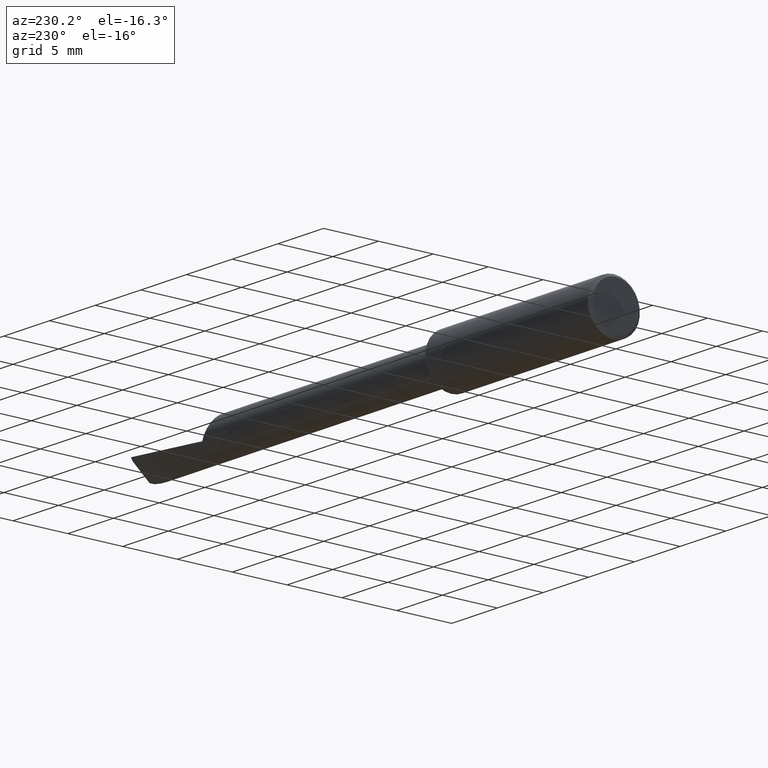
[diagram: clean part render]
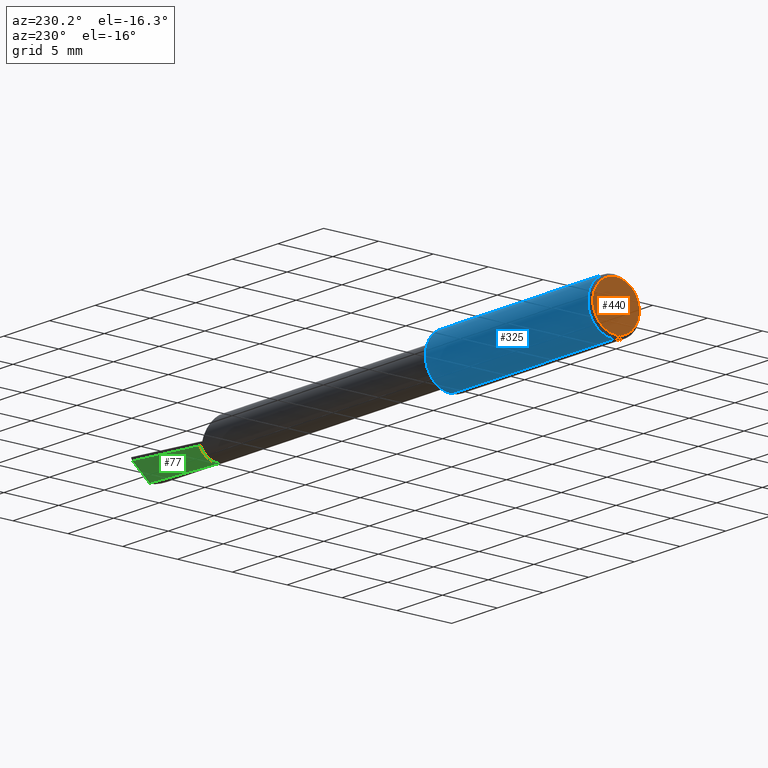
[diagram: same view with three faces highlighted in distinct colors, each labeled with its STEP entity id]
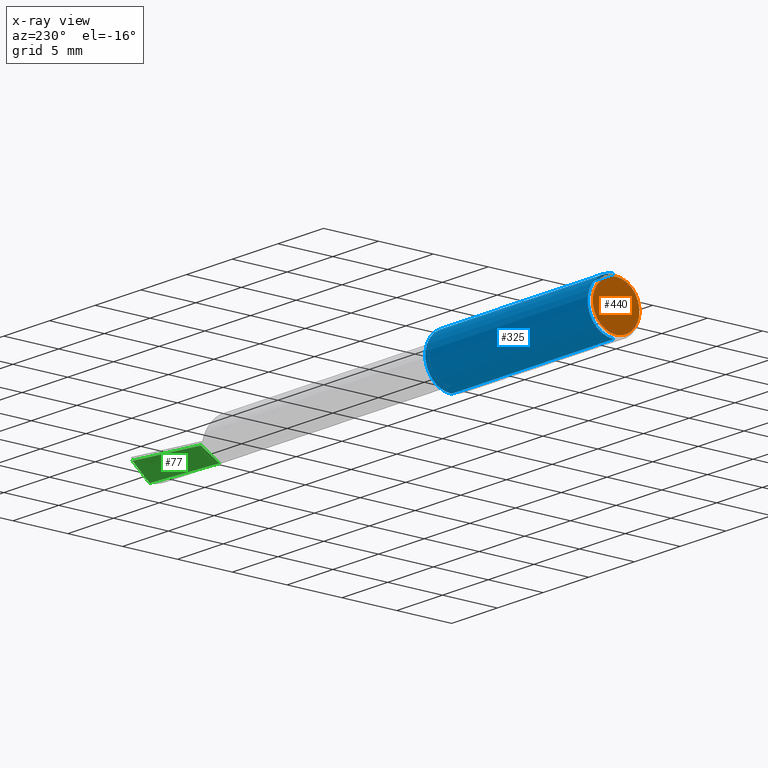
[diagram: x-ray of the same camera — body ghosted, the three highlighted faces saturated]
A machine part, auxiliary view with three faces highlighted in distinct colors.
The next image is the same camera in x-ray (body ghosted, the three faces saturated) — at least one of them is partly hidden behind the body in this view.
Their STEP definitions:

[orange] entity #440 — the highlighted planar face has unit normal (1, 0, 0).
#90 = FACE_OUTER_BOUND ( 'NONE', #662, .T. ) ;
#94 = CIRCLE ( 'NONE', #710, 0.08359999999999997988 ) ;
#95 = DIRECTION ( 'NONE',  ( 0.000000000000000000, 0.000000000000000000, 1.000000000000000000 ) ) ;
#99 = DIRECTION ( 'NONE',  ( 1.000000000000000000, 0.000000000000000000, 0.000000000000000000 ) ) ;
#140 = DIRECTION ( 'NONE',  ( 0.000000000000000000, 0.000000000000000000, 1.000000000000000000 ) ) ;
#159 = CARTESIAN_POINT ( 'NONE',  ( 0.000000000000000000, 1.085037064044554943E-17, 0.08359999999999997988 ) ) ;
#219 = DIRECTION ( 'NONE',  ( -1.000000000000000000, -0.000000000000000000, -0.000000000000000000 ) ) ;
#253 = ORIENTED_EDGE ( 'NONE', *, *, #383, .T. ) ;
#262 = PLANE ( 'NONE',  #480 ) ;
#296 = AXIS2_PLACEMENT_3D ( 'NONE', #513, #219, #95 ) ;
#379 = ORIENTED_EDGE ( 'NONE', *, *, #458, .T. ) ;
#383 = EDGE_CURVE ( 'NONE', #449, #437, #94, .T. ) ;
#413 = CIRCLE ( 'NONE', #296, 0.08359999999999997988 ) ;
#437 = VERTEX_POINT ( 'NONE', #451 ) ;
#440 = ADVANCED_FACE ( 'NONE', ( #90 ), #262, .F. ) ;
#449 = VERTEX_POINT ( 'NONE', #159 ) ;
#451 = CARTESIAN_POINT ( 'NONE',  ( 0.000000000000000000, 0.000000000000000000, -0.08359999999999997988 ) ) ;
#458 = EDGE_CURVE ( 'NONE', #437, #449, #413, .T. ) ;
#480 = AXIS2_PLACEMENT_3D ( 'NONE', #741, #99, #682 ) ;
#492 = CARTESIAN_POINT ( 'NONE',  ( 0.000000000000000000, 0.000000000000000000, 0.000000000000000000 ) ) ;
#513 = CARTESIAN_POINT ( 'NONE',  ( 0.000000000000000000, 0.000000000000000000, 0.000000000000000000 ) ) ;
#662 = EDGE_LOOP ( 'NONE', ( #379, #253 ) ) ;
#682 = DIRECTION ( 'NONE',  ( 0.000000000000000000, 0.000000000000000000, -1.000000000000000000 ) ) ;
#710 = AXIS2_PLACEMENT_3D ( 'NONE', #492, #723, #140 ) ;
#723 = DIRECTION ( 'NONE',  ( -1.000000000000000000, -0.000000000000000000, -0.000000000000000000 ) ) ;
#741 = CARTESIAN_POINT ( 'NONE',  ( 0.000000000000000000, 0.000000000000000000, 0.000000000000000000 ) ) ;

[blue] entity #325 — the highlighted cylindrical surface (edge-blend (fillet) strip) has radius 2.3774 mm, axis along (-1, -0, -0).
#7 = EDGE_CURVE ( 'NONE', #397, #79, #46, .T. ) ;
#16 = CYLINDRICAL_SURFACE ( 'NONE', #236, 0.09360000000000001652 ) ;
#46 = CIRCLE ( 'NONE', #417, 0.09360000000000001652 ) ;
#79 = VERTEX_POINT ( 'NONE', #754 ) ;
#83 = CARTESIAN_POINT ( 'NONE',  ( 0.009999999999999995004, 0.000000000000000000, 0.09360000000000001652 ) ) ;
#85 = EDGE_CURVE ( 'NONE', #397, #399, #244, .T. ) ;
#116 = CARTESIAN_POINT ( 'NONE',  ( 0.000000000000000000, 1.146269404001922775E-17, -0.09360000000000001652 ) ) ;
#135 = DIRECTION ( 'NONE',  ( -1.000000000000000000, -0.000000000000000000, -0.000000000000000000 ) ) ;
#199 = DIRECTION ( 'NONE',  ( -1.000000000000000000, -0.000000000000000000, -0.000000000000000000 ) ) ;
#236 = AXIS2_PLACEMENT_3D ( 'NONE', #663, #199, #436 ) ;
#244 = LINE ( 'NONE', #116, #281 ) ;
#267 = CARTESIAN_POINT ( 'NONE',  ( 0.009999999999999995004, 1.146269404001922775E-17, -0.09360000000000001652 ) ) ;
#271 = DIRECTION ( 'NONE',  ( -1.000000000000000000, -0.000000000000000000, -0.000000000000000000 ) ) ;
#280 = VECTOR ( 'NONE', #271, 39.37007874015748143 ) ;
#281 = VECTOR ( 'NONE', #645, 39.37007874015748143 ) ;
#302 = DIRECTION ( 'NONE',  ( 0.000000000000000000, 0.000000000000000000, -1.000000000000000000 ) ) ;
#305 = DIRECTION ( 'NONE',  ( 1.000000000000000000, 0.000000000000000000, 0.000000000000000000 ) ) ;
#311 = CARTESIAN_POINT ( 'NONE',  ( 0.000000000000000000, 0.000000000000000000, 0.09360000000000001652 ) ) ;
#314 = ORIENTED_EDGE ( 'NONE', *, *, #7, .F. ) ;
#325 = ADVANCED_FACE ( 'NONE', ( #370 ), #16, .T. ) ;
#344 = EDGE_CURVE ( 'NONE', #348, #399, #568, .T. ) ;
#348 = VERTEX_POINT ( 'NONE', #83 ) ;
#370 = FACE_OUTER_BOUND ( 'NONE', #664, .T. ) ;
#375 = ORIENTED_EDGE ( 'NONE', *, *, #344, .F. ) ;
#384 = ORIENTED_EDGE ( 'NONE', *, *, #667, .F. ) ;
#387 = AXIS2_PLACEMENT_3D ( 'NONE', #661, #135, #604 ) ;
#397 = VERTEX_POINT ( 'NONE', #569 ) ;
#399 = VERTEX_POINT ( 'NONE', #267 ) ;
#417 = AXIS2_PLACEMENT_3D ( 'NONE', #536, #305, #302 ) ;
#436 = DIRECTION ( 'NONE',  ( 0.000000000000000000, 0.000000000000000000, 1.000000000000000000 ) ) ;
#457 = ORIENTED_EDGE ( 'NONE', *, *, #85, .T. ) ;
#536 = CARTESIAN_POINT ( 'NONE',  ( 0.7100000000000000755, 0.000000000000000000, 0.000000000000000000 ) ) ;
#568 = CIRCLE ( 'NONE', #387, 0.09360000000000001652 ) ;
#569 = CARTESIAN_POINT ( 'NONE',  ( 0.7100000000000000755, 1.146269404001922775E-17, -0.09360000000000001652 ) ) ;
#604 = DIRECTION ( 'NONE',  ( 0.000000000000000000, 0.000000000000000000, 1.000000000000000000 ) ) ;
#645 = DIRECTION ( 'NONE',  ( -1.000000000000000000, -0.000000000000000000, -0.000000000000000000 ) ) ;
#661 = CARTESIAN_POINT ( 'NONE',  ( 0.009999999999999995004, 0.000000000000000000, 0.000000000000000000 ) ) ;
#663 = CARTESIAN_POINT ( 'NONE',  ( 0.000000000000000000, 0.000000000000000000, 0.000000000000000000 ) ) ;
#664 = EDGE_LOOP ( 'NONE', ( #314, #457, #375, #384 ) ) ;
#667 = EDGE_CURVE ( 'NONE', #79, #348, #733, .T. ) ;
#733 = LINE ( 'NONE', #311, #280 ) ;
#754 = CARTESIAN_POINT ( 'NONE',  ( 0.7100000000000000755, 0.000000000000000000, 0.09360000000000001652 ) ) ;

[green] entity #77 — the highlighted face is a freeform B-spline surface patch.
#23 = EDGE_LOOP ( 'NONE', ( #558, #277, #607, #579, #366 ) ) ;
#24 = CARTESIAN_POINT ( 'NONE',  ( 1.751194580466905792, -0.006177430924799603464, -0.06477662660053580546 ) ) ;
#27 = LINE ( 'NONE', #32, #697 ) ;
#30 = CARTESIAN_POINT ( 'NONE',  ( 1.813570384251951273, 8.003460918938271148E-19, -0.06500000000000000222 ) ) ;
#32 = CARTESIAN_POINT ( 'NONE',  ( 1.719999999999999973, 0.05758081542404219766, -0.02571398672436505869 ) ) ;
#41 = DIRECTION ( 'NONE',  ( 0.000000000000000000, -0.8655013302530163433, -0.5009066253607143970 ) ) ;
#48 = CARTESIAN_POINT ( 'NONE',  ( 1.991497697226062513, 0.01554903691920557843, -0.06500000000000000222 ) ) ;
#54 = VERTEX_POINT ( 'NONE', #411 ) ;
#64 = CARTESIAN_POINT ( 'NONE',  ( 1.719999999999999973, -0.06922596991571894343, -0.09910308122617432491 ) ) ;
#68 = B_SPLINE_CURVE_WITH_KNOTS ( 'NONE', 3,
 ( #381, #598, #660, #429 ),
 .UNSPECIFIED., .F., .F.,
 ( 4, 4 ),
 ( 0.000000000000000000, 0.004536655167221706648 ),
 .UNSPECIFIED. ) ;
#77 = ADVANCED_FACE ( 'NONE', ( #587 ), #673, .T. ) ;
#119 = CARTESIAN_POINT ( 'NONE',  ( 1.906666396777477956, 0.06735851617723603857, -0.01618938292801345991 ) ) ;
#124 = CARTESIAN_POINT ( 'NONE',  ( 2.000000000000000000, -0.03239026225835030942, -0.1135999999999999788 ) ) ;
#160 = VERTEX_POINT ( 'NONE', #467 ) ;
#174 = CARTESIAN_POINT ( 'NONE',  ( 1.993876612660086645, 0.03402300587759423539, -0.04693900690774778506 ) ) ;
#178 = CARTESIAN_POINT ( 'NONE',  ( 1.998726022799542035, 0.07115711936974120078, -0.01008442737369629957 ) ) ;
#179 = CARTESIAN_POINT ( 'NONE',  ( 1.906666187157394221, -0.04524618104179124745, -0.1107847082594578814 ) ) ;
#181 = CARTESIAN_POINT ( 'NONE',  ( 2.000000000000000000, 0.07120973774164850167, -0.01000000000000000021 ) ) ;
#201 = B_SPLINE_CURVE_WITH_KNOTS ( 'NONE', 3,
 ( #657, #24, #363, #30 ),
 .UNSPECIFIED., .F., .F.,
 ( 4, 4 ),
 ( 0.000000000000000000, 0.002388144790512181353 ),
 .UNSPECIFIED. ) ;
#212 = VERTEX_POINT ( 'NONE', #365 ) ;
#277 = ORIENTED_EDGE ( 'NONE', *, *, #693, .F. ) ;
#292 = CARTESIAN_POINT ( 'NONE',  ( 1.995071253894708185, 0.04321459812773233156, -0.03786306949272103678 ) ) ;
#317 = EDGE_CURVE ( 'NONE', #511, #54, #498, .T. ) ;
#337 = CARTESIAN_POINT ( 'NONE',  ( 1.998726022799542035, 0.07115711936974120078, -0.01008442737369629957 ) ) ;
#351 = CARTESIAN_POINT ( 'NONE',  ( 1.996285930696583222, 0.05256034441119986078, -0.02863491771475288120 ) ) ;
#360 = CARTESIAN_POINT ( 'NONE',  ( 1.813333907673392531, -0.05773088465805257391, -0.1058888551097066227 ) ) ;
#363 = CARTESIAN_POINT ( 'NONE',  ( 1.782384157267214331, -0.003113718387558165809, -0.06500000000000005773 ) ) ;
#365 = CARTESIAN_POINT ( 'NONE',  ( 1.991497697226062513, 0.01554903691920557843, -0.06500000000000000222 ) ) ;
#366 = ORIENTED_EDGE ( 'NONE', *, *, #317, .F. ) ;
#381 = CARTESIAN_POINT ( 'NONE',  ( 1.813570384251951273, 8.003460918938271148E-19, -0.06500000000000000222 ) ) ;
#411 = CARTESIAN_POINT ( 'NONE',  ( 1.719999999999999973, 0.05758081542404219766, -0.02571398672436505869 ) ) ;
#415 = CARTESIAN_POINT ( 'NONE',  ( 1.719999999999999973, 0.05758081542404219766, -0.02571398672436505869 ) ) ;
#429 = CARTESIAN_POINT ( 'NONE',  ( 1.991497697226062513, 0.01554903691920557843, -0.06500000000000000222 ) ) ;
#467 = CARTESIAN_POINT ( 'NONE',  ( 1.813570384251951273, 8.003460918938271148E-19, -0.06500000000000000222 ) ) ;
#496 = CARTESIAN_POINT ( 'NONE',  ( 1.812908770613867127, 0.06267376777089761486, -0.02149727218159509443 ) ) ;
#498 = B_SPLINE_CURVE_WITH_KNOTS ( 'NONE', 3,
 ( #550, #719, #496, #721 ),
 .UNSPECIFIED., .F., .F.,
 ( 4, 4 ),
 ( 0.004549905558638261439, 1.000000000000000000 ),
 .UNSPECIFIED. ) ;
#511 = VERTEX_POINT ( 'NONE', #337 ) ;
#522 = EDGE_CURVE ( 'NONE', #54, #583, #27, .T. ) ;
#550 = CARTESIAN_POINT ( 'NONE',  ( 1.998726022799542035, 0.07115711936974120078, -0.01008442737369629957 ) ) ;
#558 = ORIENTED_EDGE ( 'NONE', *, *, #594, .F. ) ;
#579 = ORIENTED_EDGE ( 'NONE', *, *, #522, .F. ) ;
#583 = VERTEX_POINT ( 'NONE', #703 ) ;
#586 = CARTESIAN_POINT ( 'NONE',  ( 1.997504190627929166, 0.06187471731385378593, -0.01937535503357968106 ) ) ;
#587 = FACE_OUTER_BOUND ( 'NONE', #23, .T. ) ;
#594 = EDGE_CURVE ( 'NONE', #212, #511, #615, .T. ) ;
#598 = CARTESIAN_POINT ( 'NONE',  ( 1.872813036531169262, 0.005914948795177814821, -0.06500000000000000222 ) ) ;
#607 = ORIENTED_EDGE ( 'NONE', *, *, #725, .F. ) ;
#615 = B_SPLINE_CURVE_WITH_KNOTS ( 'NONE', 3,
 ( #48, #747, #174, #292, #351, #586, #178 ),
 .UNSPECIFIED., .F., .F.,
 ( 4, 3, 4 ),
 ( 1.653267529927235623E-05, 0.001005035468824684412, 0.002010116709445343777 ),
 .UNSPECIFIED. ) ;
#657 = CARTESIAN_POINT ( 'NONE',  ( 1.719999999999999973, -0.009175636126352458913, -0.06434910800995440050 ) ) ;
#660 = CARTESIAN_POINT ( 'NONE',  ( 1.932141672084894068, 0.01091722336907574066, -0.06500000000000000222 ) ) ;
#673 = B_SPLINE_SURFACE_WITH_KNOTS ( 'NONE', 1, 3, ( 
 ( #181, #119, #700, #415 ),
 ( #124, #179, #360, #64 ) ),
 .UNSPECIFIED., .F., .F., .F.,
 ( 2, 2 ),
 ( 4, 4 ),
 ( 0.000000000000000000, 1.000000000000000000 ),
 ( 0.000000000000000000, 1.000000000000000000 ),
 .UNSPECIFIED. ) ;
#693 = EDGE_CURVE ( 'NONE', #160, #212, #68, .T. ) ;
#697 = VECTOR ( 'NONE', #41, 39.37007874015748143 ) ;
#700 = CARTESIAN_POINT ( 'NONE',  ( 1.813333428900828048, 0.06269704613745978594, -0.02147799883677435281 ) ) ;
#703 = CARTESIAN_POINT ( 'NONE',  ( 1.719999999999999973, -0.009175636126352458913, -0.06434910800995440050 ) ) ;
#719 = CARTESIAN_POINT ( 'NONE',  ( 1.905817084389240135, 0.06731608826605313400, -0.01623748654272803155 ) ) ;
#721 = CARTESIAN_POINT ( 'NONE',  ( 1.719999999999999973, 0.05758081542404219766, -0.02571398672436505869 ) ) ;
#725 = EDGE_CURVE ( 'NONE', #583, #160, #201, .T. ) ;
#747 = CARTESIAN_POINT ( 'NONE',  ( 1.992685424031543917, 0.02480096445777988518, -0.05598466209228683543 ) ) ;